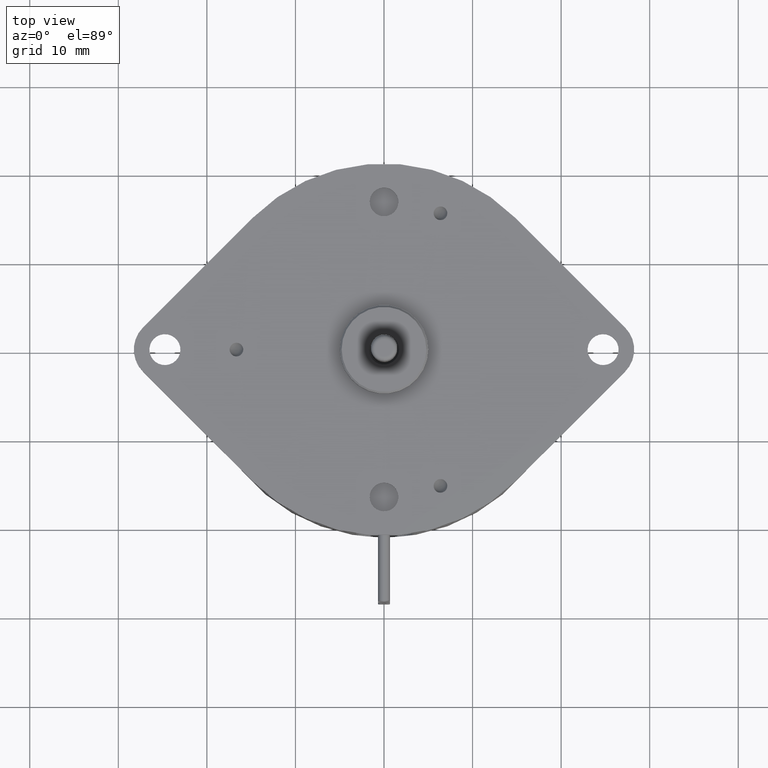
[diagram: clean part render]
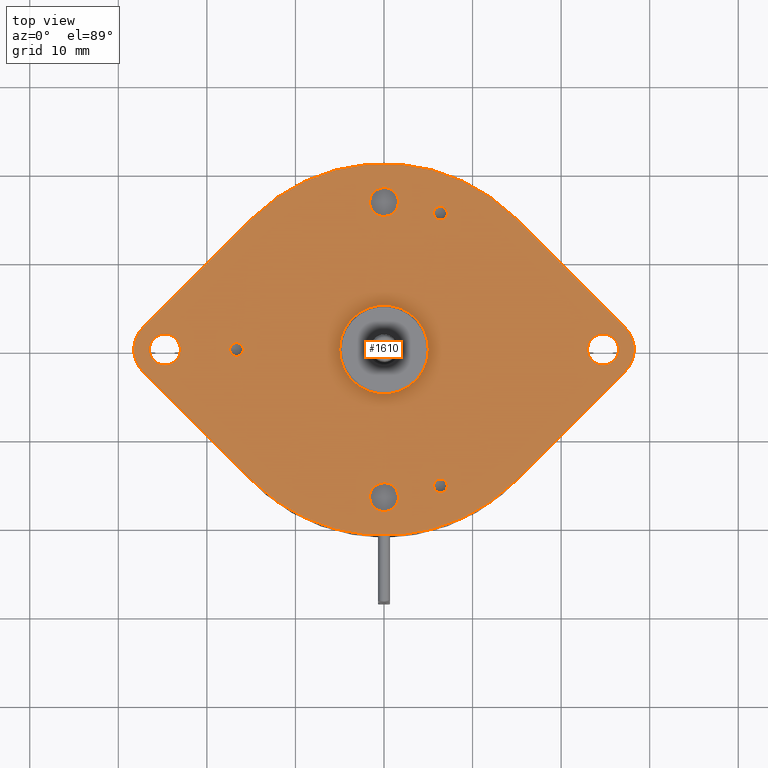
[diagram: same view with one face highlighted and labeled with its STEP entity id]
A machine part, top view. The second image highlights one B-rep face of the part: STEP entity #1610.
In plain terms, the highlighted planar face has unit normal (0, 0, 1).
Its self-contained STEP definition (entity closure, byte-faithful):
#1039=DIRECTION('',(0.E0,1.E0,0.E0));
#1040=VECTOR('',#1039,6.887220048757E-1);
#1041=CARTESIAN_POINT('',(-8.27E-1,-6.887220048757E-1,3.2E-2));
#1042=LINE('',#1041,#1040);
#1043=CARTESIAN_POINT('',(0.E0,0.E0,3.2E-2));
#1044=DIRECTION('',(0.E0,0.E0,-1.E0));
#1045=DIRECTION('',(-1.E0,0.E0,0.E0));
#1046=AXIS2_PLACEMENT_3D('',#1043,#1044,#1045);
#1048=DIRECTION('',(1.E0,0.E0,0.E0));
#1049=VECTOR('',#1048,6.887220048757E-1);
#1050=CARTESIAN_POINT('',(0.E0,8.27E-1,3.2E-2));
#1051=LINE('',#1050,#1049);
#1052=CARTESIAN_POINT('',(6.887220048757E-1,6.887220048757E-1,3.2E-2));
#1053=DIRECTION('',(0.E0,0.E0,-1.E0));
#1054=DIRECTION('',(0.E0,1.E0,0.E0));
#1055=AXIS2_PLACEMENT_3D('',#1052,#1053,#1054);
#1057=DIRECTION('',(0.E0,-1.E0,0.E0));
#1058=VECTOR('',#1057,6.887220048757E-1);
#1059=CARTESIAN_POINT('',(8.27E-1,6.887220048757E-1,3.2E-2));
#1060=LINE('',#1059,#1058);
#1061=CARTESIAN_POINT('',(0.E0,0.E0,3.2E-2));
#1062=DIRECTION('',(0.E0,0.E0,-1.E0));
#1063=DIRECTION('',(1.E0,0.E0,0.E0));
#1064=AXIS2_PLACEMENT_3D('',#1061,#1062,#1063);
#1066=DIRECTION('',(-1.E0,0.E0,0.E0));
#1067=VECTOR('',#1066,6.887220048757E-1);
#1068=CARTESIAN_POINT('',(0.E0,-8.27E-1,3.2E-2));
#1069=LINE('',#1068,#1067);
#1070=CARTESIAN_POINT('',(-6.887220048757E-1,-6.887220048757E-1,3.2E-2));
#1071=DIRECTION('',(0.E0,0.E0,-1.E0));
#1072=DIRECTION('',(0.E0,-1.E0,0.E0));
#1073=AXIS2_PLACEMENT_3D('',#1070,#1071,#1072);
#1075=CARTESIAN_POINT('',(-4.638620484584E-1,4.638620484584E-1,3.2E-2));
#1076=DIRECTION('',(0.E0,0.E0,1.E0));
#1077=DIRECTION('',(1.E0,0.E0,0.E0));
#1078=AXIS2_PLACEMENT_3D('',#1075,#1076,#1077);
#1080=CARTESIAN_POINT('',(-4.638620484584E-1,4.638620484584E-1,3.2E-2));
#1081=DIRECTION('',(0.E0,0.E0,1.E0));
#1082=DIRECTION('',(-1.E0,0.E0,0.E0));
#1083=AXIS2_PLACEMENT_3D('',#1080,#1081,#1082);
#1085=CARTESIAN_POINT('',(4.638620484584E-1,-4.638620484584E-1,3.2E-2));
#1086=DIRECTION('',(0.E0,0.E0,1.E0));
#1087=DIRECTION('',(0.E0,-1.E0,0.E0));
#1088=AXIS2_PLACEMENT_3D('',#1085,#1086,#1087);
#1090=CARTESIAN_POINT('',(4.638620484584E-1,-4.638620484584E-1,3.2E-2));
#1091=DIRECTION('',(0.E0,0.E0,1.E0));
#1092=DIRECTION('',(0.E0,1.E0,0.E0));
#1093=AXIS2_PLACEMENT_3D('',#1090,#1091,#1092);
#1095=CARTESIAN_POINT('',(0.E0,0.E0,3.2E-2));
#1096=DIRECTION('',(0.E0,0.E0,1.E0));
#1097=DIRECTION('',(1.E0,0.E0,0.E0));
#1098=AXIS2_PLACEMENT_3D('',#1095,#1096,#1097);
#1100=CARTESIAN_POINT('',(0.E0,0.E0,3.2E-2));
#1101=DIRECTION('',(0.E0,0.E0,1.E0));
#1102=DIRECTION('',(-1.E0,0.E0,0.E0));
#1103=AXIS2_PLACEMENT_3D('',#1100,#1101,#1102);
#1105=CARTESIAN_POINT('',(6.887220048757E-1,6.887220048757E-1,3.2E-2));
#1106=DIRECTION('',(0.E0,0.E0,1.E0));
#1107=DIRECTION('',(1.E0,0.E0,0.E0));
#1108=AXIS2_PLACEMENT_3D('',#1105,#1106,#1107);
#1110=CARTESIAN_POINT('',(6.887220048757E-1,6.887220048757E-1,3.2E-2));
#1111=DIRECTION('',(0.E0,0.E0,1.E0));
#1112=DIRECTION('',(-1.E0,0.E0,0.E0));
#1113=AXIS2_PLACEMENT_3D('',#1110,#1111,#1112);
#1115=CARTESIAN_POINT('',(-6.887220048757E-1,-6.887220048757E-1,3.2E-2));
#1116=DIRECTION('',(0.E0,0.E0,1.E0));
#1117=DIRECTION('',(1.E0,0.E0,0.E0));
#1118=AXIS2_PLACEMENT_3D('',#1115,#1116,#1117);
#1120=CARTESIAN_POINT('',(-6.887220048757E-1,-6.887220048757E-1,3.2E-2));
#1121=DIRECTION('',(0.E0,0.E0,1.E0));
#1122=DIRECTION('',(-1.E0,0.E0,0.E0));
#1123=AXIS2_PLACEMENT_3D('',#1120,#1121,#1122);
#1125=CARTESIAN_POINT('',(-2.510403316315E-1,6.060649733274E-1,3.2E-2));
#1126=DIRECTION('',(0.E0,0.E0,1.E0));
#1127=DIRECTION('',(-3.826834323651E-1,9.238795325113E-1,0.E0));
#1128=AXIS2_PLACEMENT_3D('',#1125,#1126,#1127);
#1130=CARTESIAN_POINT('',(-2.510403316315E-1,6.060649733274E-1,3.2E-2));
#1131=DIRECTION('',(0.E0,0.E0,1.E0));
#1132=DIRECTION('',(3.826834323651E-1,-9.238795325113E-1,0.E0));
#1133=AXIS2_PLACEMENT_3D('',#1130,#1131,#1132);
#1135=CARTESIAN_POINT('',(-4.638620484584E-1,-4.638620484584E-1,3.2E-2));
#1136=DIRECTION('',(0.E0,0.E0,1.E0));
#1137=DIRECTION('',(-7.071067811865E-1,-7.071067811865E-1,0.E0));
#1138=AXIS2_PLACEMENT_3D('',#1135,#1136,#1137);
#1140=CARTESIAN_POINT('',(-4.638620484584E-1,-4.638620484584E-1,3.2E-2));
#1141=DIRECTION('',(0.E0,0.E0,1.E0));
#1142=DIRECTION('',(7.071067811865E-1,7.071067811865E-1,0.E0));
#1143=AXIS2_PLACEMENT_3D('',#1140,#1141,#1142);
#1145=CARTESIAN_POINT('',(6.060649733274E-1,-2.510403316315E-1,3.2E-2));
#1146=DIRECTION('',(0.E0,0.E0,1.E0));
#1147=DIRECTION('',(9.238795325113E-1,-3.826834323651E-1,0.E0));
#1148=AXIS2_PLACEMENT_3D('',#1145,#1146,#1147);
#1150=CARTESIAN_POINT('',(6.060649733274E-1,-2.510403316315E-1,3.2E-2));
#1151=DIRECTION('',(0.E0,0.E0,1.E0));
#1152=DIRECTION('',(-9.238795325113E-1,3.826834323651E-1,0.E0));
#1153=AXIS2_PLACEMENT_3D('',#1150,#1151,#1152);
#1303=CARTESIAN_POINT('',(4.638620484584E-1,-3.998620484584E-1,3.2E-2));
#1304=VERTEX_POINT('',#1303);
#1305=CARTESIAN_POINT('',(4.638620484584E-1,-5.278620484584E-1,3.2E-2));
#1306=VERTEX_POINT('',#1305);
#1307=CARTESIAN_POINT('',(-8.27E-1,-6.887220048757E-1,3.2E-2));
#1308=CARTESIAN_POINT('',(-8.27E-1,0.E0,3.2E-2));
#1309=VERTEX_POINT('',#1307);
#1310=VERTEX_POINT('',#1308);
#1311=CARTESIAN_POINT('',(0.E0,8.27E-1,3.2E-2));
#1312=VERTEX_POINT('',#1311);
#1313=CARTESIAN_POINT('',(6.887220048757E-1,8.27E-1,3.2E-2));
#1314=VERTEX_POINT('',#1313);
#1315=CARTESIAN_POINT('',(8.27E-1,6.887220048757E-1,3.2E-2));
#1316=VERTEX_POINT('',#1315);
#1317=CARTESIAN_POINT('',(8.27E-1,0.E0,3.2E-2));
#1318=VERTEX_POINT('',#1317);
#1319=CARTESIAN_POINT('',(0.E0,-8.27E-1,3.2E-2));
#1320=VERTEX_POINT('',#1319);
#1321=CARTESIAN_POINT('',(-6.887220048757E-1,-8.27E-1,3.2E-2));
#1322=VERTEX_POINT('',#1321);
#1323=CARTESIAN_POINT('',(-3.998620484584E-1,4.638620484584E-1,3.2E-2));
#1324=CARTESIAN_POINT('',(-5.278620484584E-1,4.638620484584E-1,3.2E-2));
#1325=VERTEX_POINT('',#1323);
#1326=VERTEX_POINT('',#1324);
#1327=CARTESIAN_POINT('',(1.43E-1,0.E0,3.2E-2));
#1328=CARTESIAN_POINT('',(-1.43E-1,0.E0,3.2E-2));
#1329=VERTEX_POINT('',#1327);
#1330=VERTEX_POINT('',#1328);
#1331=CARTESIAN_POINT('',(7.577220048757E-1,6.887220048757E-1,3.2E-2));
#1332=CARTESIAN_POINT('',(6.197220048757E-1,6.887220048757E-1,3.2E-2));
#1333=VERTEX_POINT('',#1331);
#1334=VERTEX_POINT('',#1332);
#1335=CARTESIAN_POINT('',(-6.197220048757E-1,-6.887220048757E-1,3.2E-2));
#1336=CARTESIAN_POINT('',(-7.577220048757E-1,-6.887220048757E-1,3.2E-2));
#1337=VERTEX_POINT('',#1335);
#1338=VERTEX_POINT('',#1336);
#1339=CARTESIAN_POINT('',(-2.626591589052E-1,6.341153037105E-1,3.2E-2));
#1340=CARTESIAN_POINT('',(-2.394215043578E-1,5.780146429443E-1,3.2E-2));
#1341=VERTEX_POINT('',#1339);
#1342=VERTEX_POINT('',#1340);
#1343=CARTESIAN_POINT('',(-4.853308418784E-1,-4.853308418784E-1,3.2E-2));
#1344=CARTESIAN_POINT('',(-4.423932550384E-1,-4.423932550384E-1,3.2E-2));
#1345=VERTEX_POINT('',#1343);
#1346=VERTEX_POINT('',#1344);
#1347=CARTESIAN_POINT('',(6.341153037105E-1,-2.626591589052E-1,3.2E-2));
#1348=CARTESIAN_POINT('',(5.780146429443E-1,-2.394215043578E-1,3.2E-2));
#1349=VERTEX_POINT('',#1347);
#1350=VERTEX_POINT('',#1348);
#1547=CARTESIAN_POINT('',(0.E0,0.E0,3.2E-2));
#1548=DIRECTION('',(0.E0,0.E0,1.E0));
#1549=DIRECTION('',(1.E0,0.E0,0.E0));
#1550=AXIS2_PLACEMENT_3D('',#1547,#1548,#1549);
#1551=PLANE('',#1550);
#1552=ORIENTED_EDGE('',*,*,#1443,.T.);
#1553=ORIENTED_EDGE('',*,*,#1458,.T.);
#1554=ORIENTED_EDGE('',*,*,#1472,.T.);
#1555=ORIENTED_EDGE('',*,*,#1486,.T.);
#1556=ORIENTED_EDGE('',*,*,#1500,.T.);
#1557=ORIENTED_EDGE('',*,*,#1514,.T.);
#1558=ORIENTED_EDGE('',*,*,#1528,.T.);
#1559=ORIENTED_EDGE('',*,*,#1541,.T.);
#1560=EDGE_LOOP('',(#1552,#1553,#1554,#1555,#1556,#1557,#1558,#1559));
#1561=FACE_OUTER_BOUND('',#1560,.F.);
#1563=ORIENTED_EDGE('',*,*,#1562,.T.);
#1565=ORIENTED_EDGE('',*,*,#1564,.T.);
#1566=EDGE_LOOP('',(#1563,#1565));
#1567=FACE_BOUND('',#1566,.F.);
#1569=ORIENTED_EDGE('',*,*,#1568,.T.);
#1571=ORIENTED_EDGE('',*,*,#1570,.T.);
#1572=EDGE_LOOP('',(#1569,#1571));
#1573=FACE_BOUND('',#1572,.F.);
#1575=ORIENTED_EDGE('',*,*,#1574,.T.);
#1577=ORIENTED_EDGE('',*,*,#1576,.T.);
#1578=EDGE_LOOP('',(#1575,#1577));
#1579=FACE_BOUND('',#1578,.F.);
#1581=ORIENTED_EDGE('',*,*,#1580,.T.);
#1583=ORIENTED_EDGE('',*,*,#1582,.T.);
#1584=EDGE_LOOP('',(#1581,#1583));
#1585=FACE_BOUND('',#1584,.F.);
#1587=ORIENTED_EDGE('',*,*,#1586,.T.);
#1589=ORIENTED_EDGE('',*,*,#1588,.T.);
#1590=EDGE_LOOP('',(#1587,#1589));
#1591=FACE_BOUND('',#1590,.F.);
#1593=ORIENTED_EDGE('',*,*,#1592,.T.);
#1595=ORIENTED_EDGE('',*,*,#1594,.T.);
#1596=EDGE_LOOP('',(#1593,#1595));
#1597=FACE_BOUND('',#1596,.F.);
#1599=ORIENTED_EDGE('',*,*,#1598,.T.);
#1601=ORIENTED_EDGE('',*,*,#1600,.T.);
#1602=EDGE_LOOP('',(#1599,#1601));
#1603=FACE_BOUND('',#1602,.F.);
#1605=ORIENTED_EDGE('',*,*,#1604,.T.);
#1607=ORIENTED_EDGE('',*,*,#1606,.T.);
#1608=EDGE_LOOP('',(#1605,#1607));
#1609=FACE_BOUND('',#1608,.F.);
#1610=ADVANCED_FACE('',(#1561,#1567,#1573,#1579,#1585,#1591,#1597,#1603,#1609),
#1551,.T.);
#1047=CIRCLE('',#1046,8.27E-1);
#1056=CIRCLE('',#1055,1.382779951243E-1);
#1065=CIRCLE('',#1064,8.27E-1);
#1074=CIRCLE('',#1073,1.382779951243E-1);
#1079=CIRCLE('',#1078,6.4E-2);
#1084=CIRCLE('',#1083,6.4E-2);
#1089=CIRCLE('',#1088,6.4E-2);
#1094=CIRCLE('',#1093,6.4E-2);
#1099=CIRCLE('',#1098,1.43E-1);
#1104=CIRCLE('',#1103,1.43E-1);
#1109=CIRCLE('',#1108,6.9E-2);
#1114=CIRCLE('',#1113,6.9E-2);
#1119=CIRCLE('',#1118,6.9E-2);
#1124=CIRCLE('',#1123,6.9E-2);
#1129=CIRCLE('',#1128,3.036145882230E-2);
#1134=CIRCLE('',#1133,3.036145882230E-2);
#1139=CIRCLE('',#1138,3.036145882230E-2);
#1144=CIRCLE('',#1143,3.036145882230E-2);
#1149=CIRCLE('',#1148,3.036145882230E-2);
#1154=CIRCLE('',#1153,3.036145882230E-2);
#1443=EDGE_CURVE('',#1309,#1310,#1042,.T.);
#1458=EDGE_CURVE('',#1310,#1312,#1047,.T.);
#1472=EDGE_CURVE('',#1312,#1314,#1051,.T.);
#1486=EDGE_CURVE('',#1314,#1316,#1056,.T.);
#1500=EDGE_CURVE('',#1316,#1318,#1060,.T.);
#1514=EDGE_CURVE('',#1318,#1320,#1065,.T.);
#1528=EDGE_CURVE('',#1320,#1322,#1069,.T.);
#1541=EDGE_CURVE('',#1322,#1309,#1074,.T.);
#1562=EDGE_CURVE('',#1325,#1326,#1079,.T.);
#1564=EDGE_CURVE('',#1326,#1325,#1084,.T.);
#1568=EDGE_CURVE('',#1306,#1304,#1089,.T.);
#1570=EDGE_CURVE('',#1304,#1306,#1094,.T.);
#1574=EDGE_CURVE('',#1329,#1330,#1099,.T.);
#1576=EDGE_CURVE('',#1330,#1329,#1104,.T.);
#1580=EDGE_CURVE('',#1333,#1334,#1109,.T.);
#1582=EDGE_CURVE('',#1334,#1333,#1114,.T.);
#1586=EDGE_CURVE('',#1337,#1338,#1119,.T.);
#1588=EDGE_CURVE('',#1338,#1337,#1124,.T.);
#1592=EDGE_CURVE('',#1341,#1342,#1129,.T.);
#1594=EDGE_CURVE('',#1342,#1341,#1134,.T.);
#1598=EDGE_CURVE('',#1345,#1346,#1139,.T.);
#1600=EDGE_CURVE('',#1346,#1345,#1144,.T.);
#1604=EDGE_CURVE('',#1349,#1350,#1149,.T.);
#1606=EDGE_CURVE('',#1350,#1349,#1154,.T.);